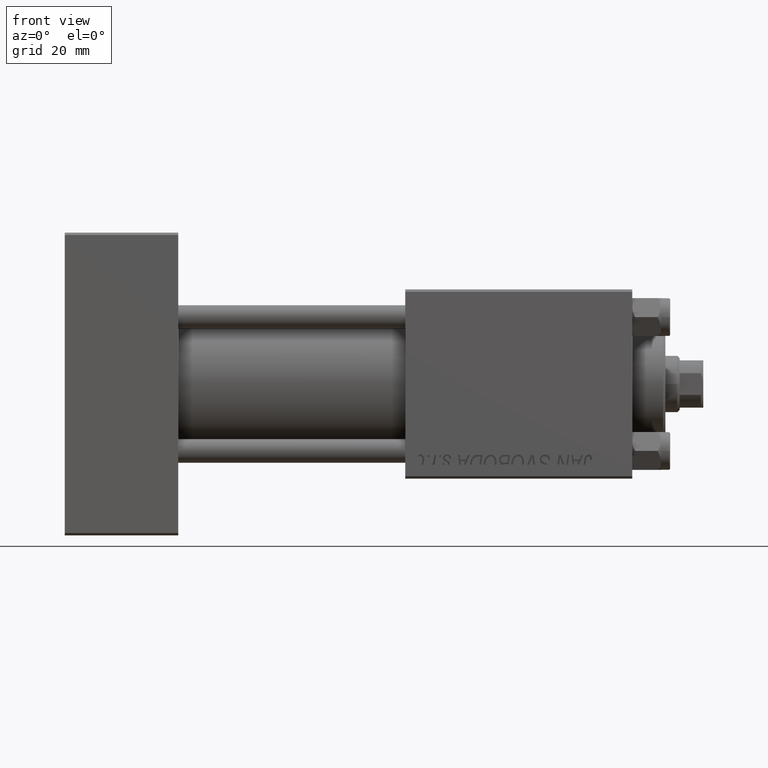
[diagram: clean part render]
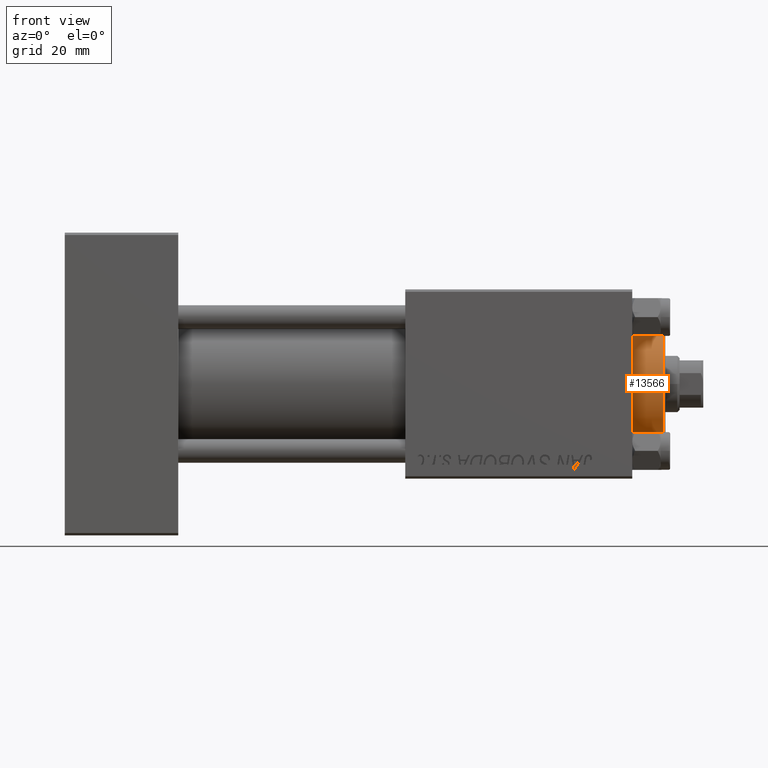
[diagram: same view with one face highlighted and labeled with its STEP entity id]
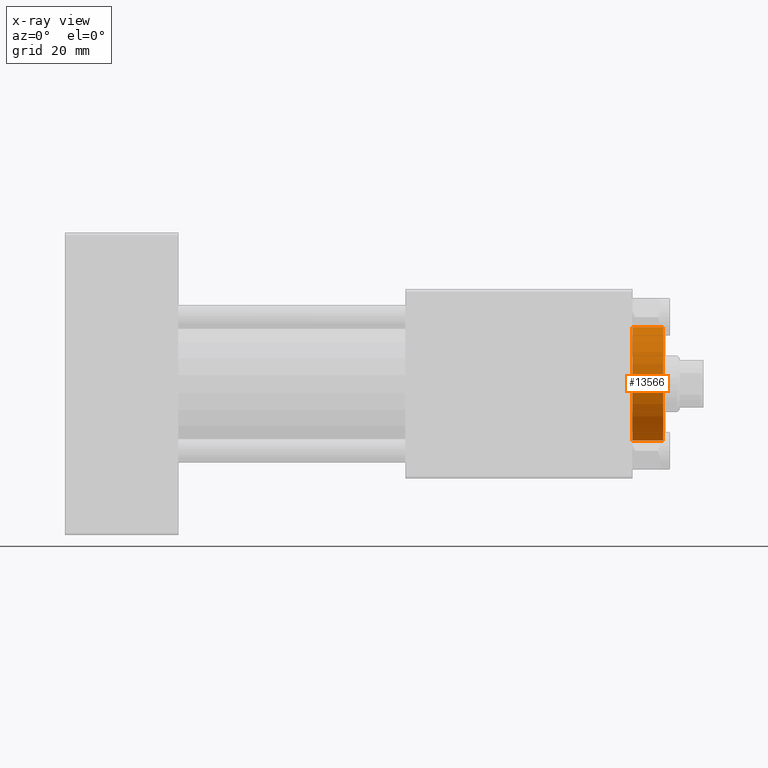
[diagram: x-ray of the same camera — body ghosted, the highlighted face saturated]
A machine part, front view. The second image highlights one B-rep face of the part: STEP entity #13566.
The next image is the same camera in x-ray: the body ghosted, the highlighted face saturated — about 1% of this face is hidden behind the body in this view.
In plain terms, the highlighted cylindrical surface (partial cylindrical patch) has radius 12 mm, axis along (-1, -0, 0).
Its self-contained STEP definition (entity closure, byte-faithful):
#3871 = CARTESIAN_POINT ( 'NONE',  ( 0.000000000000000000, 0.000000000000000000, 28.69999999999999929 ) ) ;
#4256 = ORIENTED_EDGE ( 'NONE', *, *, #9591, .F. ) ;
#4506 = VECTOR ( 'NONE', #5161, 1000.000000000000000 ) ;
#5161 = DIRECTION ( 'NONE',  ( -0.000000000000000000, -0.000000000000000000, -1.000000000000000000 ) ) ;
#7017 = AXIS2_PLACEMENT_3D ( 'NONE', #28565, #25019, #22230 ) ;
#7541 = CARTESIAN_POINT ( 'NONE',  ( 12.00000000000000178, 1.469576158976824144E-15, 35.19999999999999574 ) ) ;
#7555 = VERTEX_POINT ( 'NONE', #7541 ) ;
#9591 = EDGE_CURVE ( 'NONE', #7555, #30185, #47327, .T. ) ;
#9868 = ORIENTED_EDGE ( 'NONE', *, *, #17103, .T. ) ;
#9953 = CARTESIAN_POINT ( 'NONE',  ( -12.00000000000000178, 0.000000000000000000, 28.69999999999999929 ) ) ;
#11182 = DIRECTION ( 'NONE',  ( 1.000000000000000000, 0.000000000000000000, 0.000000000000000000 ) ) ;
#11343 = EDGE_CURVE ( 'NONE', #39794, #11858, #15105, .T. ) ;
#11858 = VERTEX_POINT ( 'NONE', #9953 ) ;
#13129 = CYLINDRICAL_SURFACE ( 'NONE', #7017, 12.00000000000000178 ) ;
#13566 = ADVANCED_FACE ( 'NONE', ( #47738 ), #13129, .T. ) ;
#15105 = LINE ( 'NONE', #49952, #18263 ) ;
#17103 = EDGE_CURVE ( 'NONE', #7555, #39794, #34849, .T. ) ;
#17285 = DIRECTION ( 'NONE',  ( 0.000000000000000000, 0.000000000000000000, -1.000000000000000000 ) ) ;
#18074 = AXIS2_PLACEMENT_3D ( 'NONE', #3871, #33467, #11182 ) ;
#18263 = VECTOR ( 'NONE', #38616, 1000.000000000000000 ) ;
#21347 = CARTESIAN_POINT ( 'NONE',  ( 0.000000000000000000, 0.000000000000000000, 35.19999999999999574 ) ) ;
#22230 = DIRECTION ( 'NONE',  ( -1.000000000000000000, 0.000000000000000000, 0.000000000000000000 ) ) ;
#24289 = CARTESIAN_POINT ( 'NONE',  ( 12.00000000000000178, 1.469576158976824144E-15, 28.69999999999999929 ) ) ;
#24367 = CARTESIAN_POINT ( 'NONE',  ( 12.00000000000000178, 1.469576158976824144E-15, 35.70000000000000284 ) ) ;
#25019 = DIRECTION ( 'NONE',  ( -0.000000000000000000, -0.000000000000000000, -1.000000000000000000 ) ) ;
#26114 = EDGE_LOOP ( 'NONE', ( #4256, #9868, #42204, #39883 ) ) ;
#28565 = CARTESIAN_POINT ( 'NONE',  ( 0.000000000000000000, 0.000000000000000000, 35.70000000000000284 ) ) ;
#30185 = VERTEX_POINT ( 'NONE', #24289 ) ;
#33467 = DIRECTION ( 'NONE',  ( 0.000000000000000000, 0.000000000000000000, 1.000000000000000000 ) ) ;
#34849 = CIRCLE ( 'NONE', #42116, 12.00000000000000178 ) ;
#35189 = CARTESIAN_POINT ( 'NONE',  ( -12.00000000000000178, 0.000000000000000000, 35.19999999999999574 ) ) ;
#36759 = DIRECTION ( 'NONE',  ( 1.000000000000000000, 0.000000000000000000, 0.000000000000000000 ) ) ;
#38261 = CIRCLE ( 'NONE', #18074, 12.00000000000000178 ) ;
#38616 = DIRECTION ( 'NONE',  ( -0.000000000000000000, -0.000000000000000000, -1.000000000000000000 ) ) ;
#39794 = VERTEX_POINT ( 'NONE', #35189 ) ;
#39883 = ORIENTED_EDGE ( 'NONE', *, *, #46643, .T. ) ;
#42116 = AXIS2_PLACEMENT_3D ( 'NONE', #21347, #17285, #36759 ) ;
#42204 = ORIENTED_EDGE ( 'NONE', *, *, #11343, .T. ) ;
#46643 = EDGE_CURVE ( 'NONE', #11858, #30185, #38261, .T. ) ;
#47327 = LINE ( 'NONE', #24367, #4506 ) ;
#47738 = FACE_OUTER_BOUND ( 'NONE', #26114, .T. ) ;
#49952 = CARTESIAN_POINT ( 'NONE',  ( -12.00000000000000178, 0.000000000000000000, 35.70000000000000284 ) ) ;